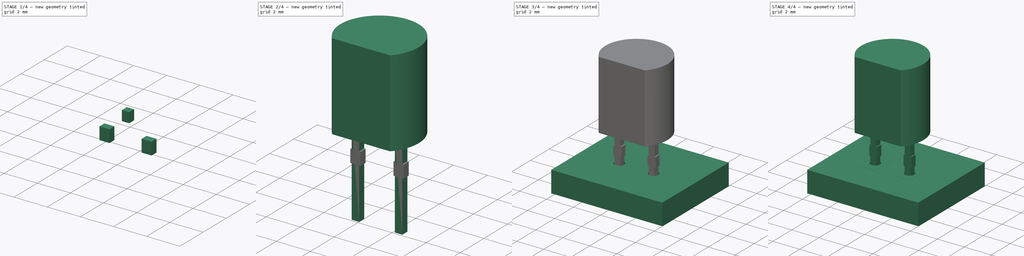
[diagram: build sequence overview — one tinted view per stage of 4, left to right]
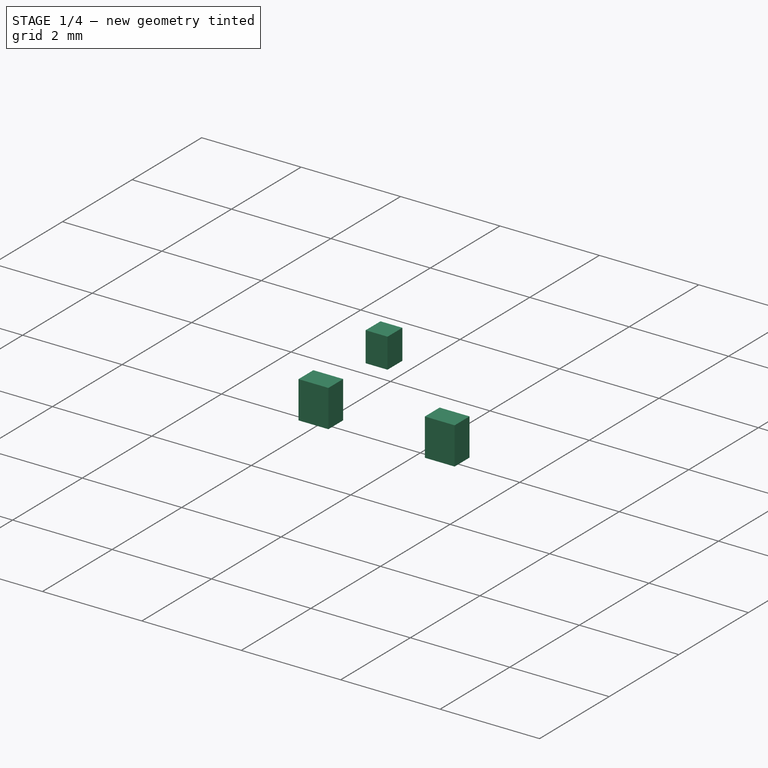
[diagram: stage 1 of 4 — iso view after this stage's code; geometry added in this stage tinted green]
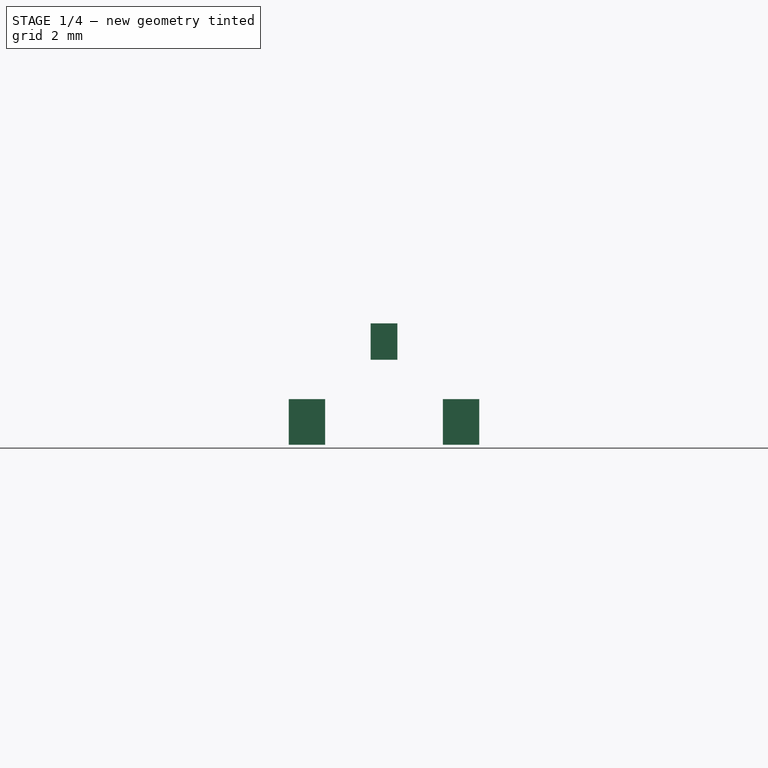
[diagram: stage 1 of 4 — front view after this stage's code; geometry added in this stage tinted green]
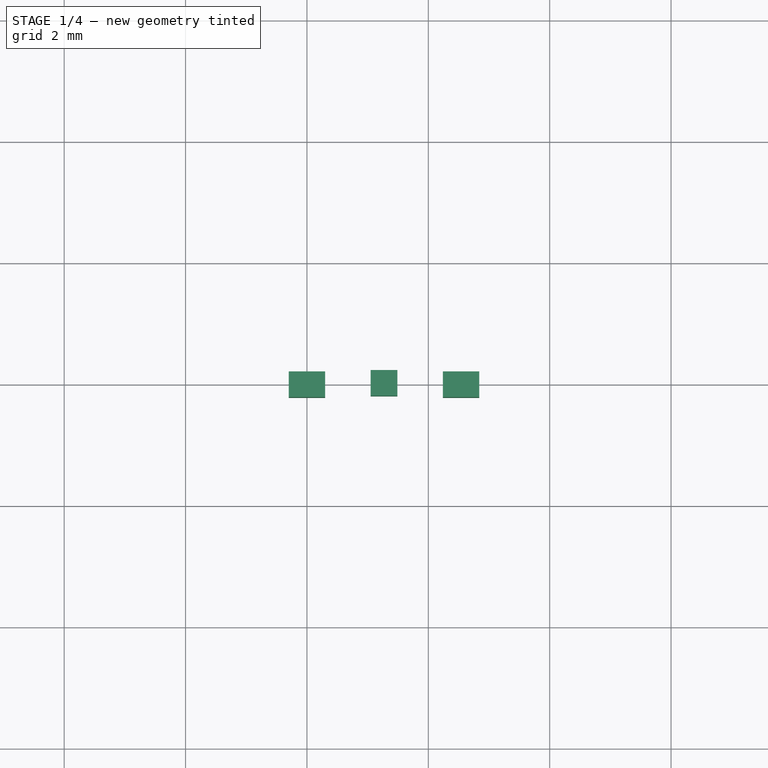
[diagram: stage 1 of 4 — top view after this stage's code; geometry added in this stage tinted green]
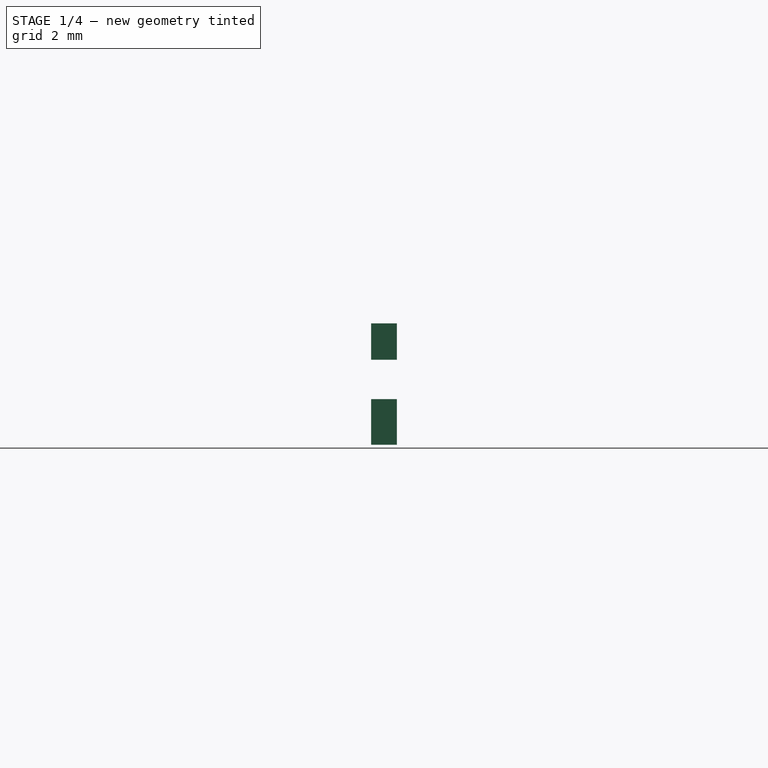
[diagram: stage 1 of 4 — right view after this stage's code; geometry added in this stage tinted green]
FCSTD DOCUMENT  (FreeCAD 0.16R6712 (Git))
Label: SOD-70_P2.54mm
License: All rights reserved
LicenseURL: http://en.wikipedia.org/wiki/All_rights_reserved
objects: Part::FeaturePython×7, Sketcher::SketchObject×4, PartDesign::Pad×4, App::DocumentObjectGroup×1, Part::MultiFuse×1
note: 20 computed .brp shape members not serialized (recipe doc carries the construction recipe); baked Part::Feature solids carry a one-line shape summary decoded from their .brp

FEATURE [App::DocumentObjectGroup] SOD_70_P2_54mm_fp
  Group = -> [FCrtYd_lines,FFab_lines,Filk_lines,TopPads,BotPads,THPs,newPCB]
FEATURE [Sketcher::SketchObject] Sketch002
  Placement = pos=(0,0,2.5) rot=(0,0,1;0rad)
  sketch-geometry (7):
    g0: LineSegment StartX=1.05 StartY=0.2125 StartZ=0 EndX=1.49 EndY=0.2125 EndZ=0
    g1: LineSegment StartX=1.49 StartY=0.2125 StartZ=0 EndX=1.49 EndY=-0.2125 EndZ=0
    g2: LineSegment StartX=1.49 StartY=-0.2125 StartZ=0 EndX=1.05 EndY=-0.2125 EndZ=0
    g3: LineSegment StartX=1.05 StartY=-0.2125 StartZ=0 EndX=1.05 EndY=0.2125 EndZ=0
    g4: GeomPoint [constr] X=1.49 Y=0 Z=0
    g5: LineSegment [constr] StartX=1.05 StartY=0 StartZ=0 EndX=1.49 EndY=0 EndZ=0
    g6: GeomPoint [constr] X=1.27 Y=0 Z=0
  constraints (18):
    c: Coincident(g0,g1)
    c: Coincident(g1,g2)
    c: Coincident(g2,g3)
    c: Coincident(g3,g0)
    c: Horizontal(g0)
    c: Horizontal(g2)
    c: Vertical(g1)
    c: Vertical(g3)
    c: PointOnObject(g4,g-1)
    c: Symmetric(g1,g1,g4)
    c: DistanceX(g0,g0) = 0.44
    c: DistanceY(g1,g1) = 0.425
    c: PointOnObject(g5,g3)
    c: Coincident(g5,g4)
    c: Horizontal(g5)
    c: PointOnObject(g6,g5)
    c: Symmetric(g5,g5,g6)
    c: DistanceX(g-1,g6) = 1.27
FEATURE [PartDesign::Pad] Pad002
  Length = 0.6
  Length2 = 100
  Placement = pos=(0,0,2.5) rot=(0,0,1;0rad)
  Reversed = true
  Sketch = -> Sketch002
  Type = 0
FEATURE [Sketcher::SketchObject] Sketch003
  Placement = pos=(0,-0.2125,2.5) rot=(1,0,0;1.5708rad)
  expr: Constraints[25] = 2.5 - 0.75 - 0.5
  sketch-geometry (9):
    g0: LineSegment StartX=-0.3 StartY=-1.25 StartZ=0 EndX=0.3 EndY=-1.25 EndZ=0
    g1: LineSegment StartX=0.3 StartY=-1.25 StartZ=0 EndX=0.3 EndY=-2 EndZ=0
    g2: LineSegment StartX=0.3 StartY=-2 StartZ=0 EndX=-0.3 EndY=-2 EndZ=0
    g3: LineSegment StartX=-0.3 StartY=-2 StartZ=0 EndX=-0.3 EndY=-1.25 EndZ=0
    g4: LineSegment StartX=2.24 StartY=-1.25 StartZ=0 EndX=2.84 EndY=-1.25 EndZ=0
    g5: LineSegment StartX=2.84 StartY=-1.25 StartZ=0 EndX=2.84 EndY=-2 EndZ=0
    g6: LineSegment StartX=2.84 StartY=-2 StartZ=0 EndX=2.24 EndY=-2 EndZ=0
    g7: LineSegment StartX=2.24 StartY=-2 StartZ=0 EndX=2.24 EndY=-1.25 EndZ=0
    g8: LineSegment [constr] StartX=0 StartY=-1.25 StartZ=0 EndX=2.54 EndY=-1.25 EndZ=0
  constraints (26):
    c: Coincident(g0,g1)
    c: Coincident(g1,g2)
    c: Coincident(g2,g3)
    c: Coincident(g3,g0)
    c: Horizontal(g0)
    c: Horizontal(g2)
    c: Vertical(g1)
    c: Vertical(g3)
    c: Coincident(g4,g5)
    c: Coincident(g5,g6)
    c: Coincident(g6,g7)
    c: Coincident(g7,g4)
    c: Horizontal(g4)
    c: Horizontal(g6)
    c: Vertical(g5)
    c: Vertical(g7)
    c: PointOnObject(g8,g-2)
    c: Horizontal(g8)
    c: Symmetric(g4,g4,g8)
    c: Symmetric(g0,g0,g8)
    c: Equal(g2,g6)
    c: Equal(g5,g1)
    c: DistanceX(g8,g8) = 2.54
    c: DistanceY(g3,g3) = 0.75
    c: DistanceX(g2,g2) = 0.6
    c: DistanceY(g0,g-1) = 1.25
FEATURE [PartDesign::Pad] Pad003
  Length = 0.425
  Length2 = 100
  Placement = pos=(0,-0.2125,2.5) rot=(1,0,0;1.5708rad)
  Reversed = true
  Sketch = -> Sketch003
  Type = 0
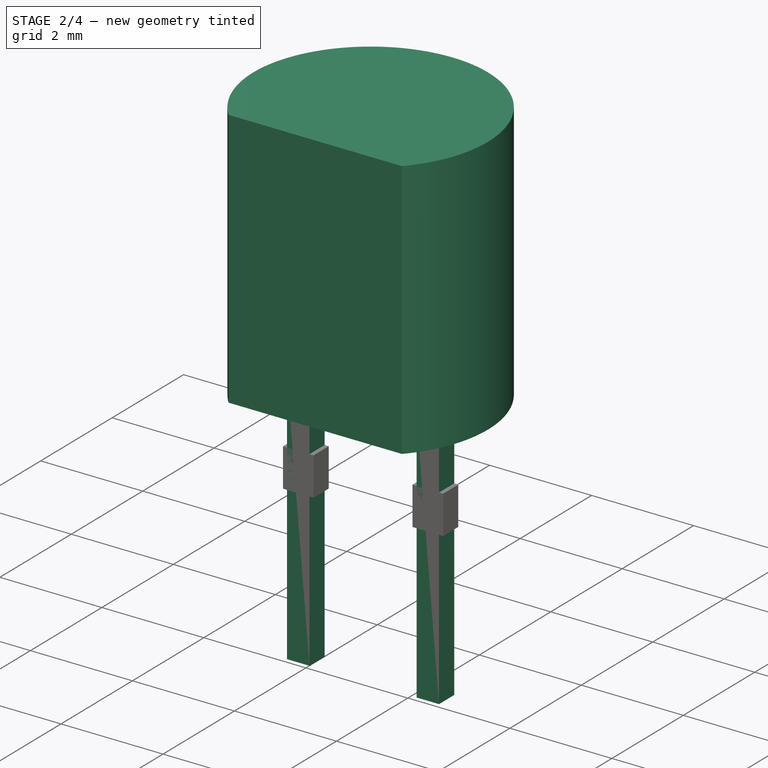
[diagram: stage 2 of 4 — iso view after this stage's code; geometry added in this stage tinted green]
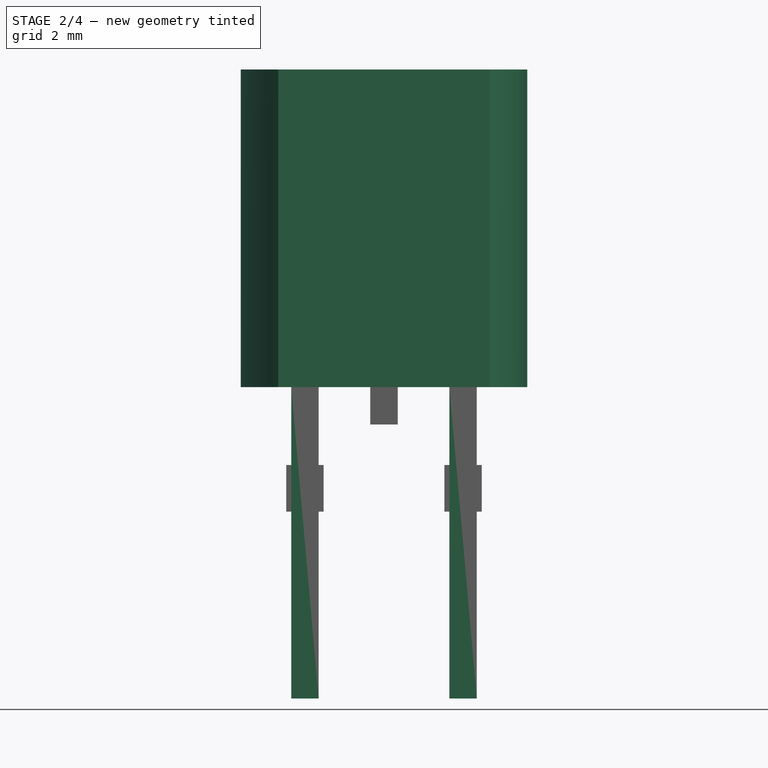
[diagram: stage 2 of 4 — front view after this stage's code; geometry added in this stage tinted green]
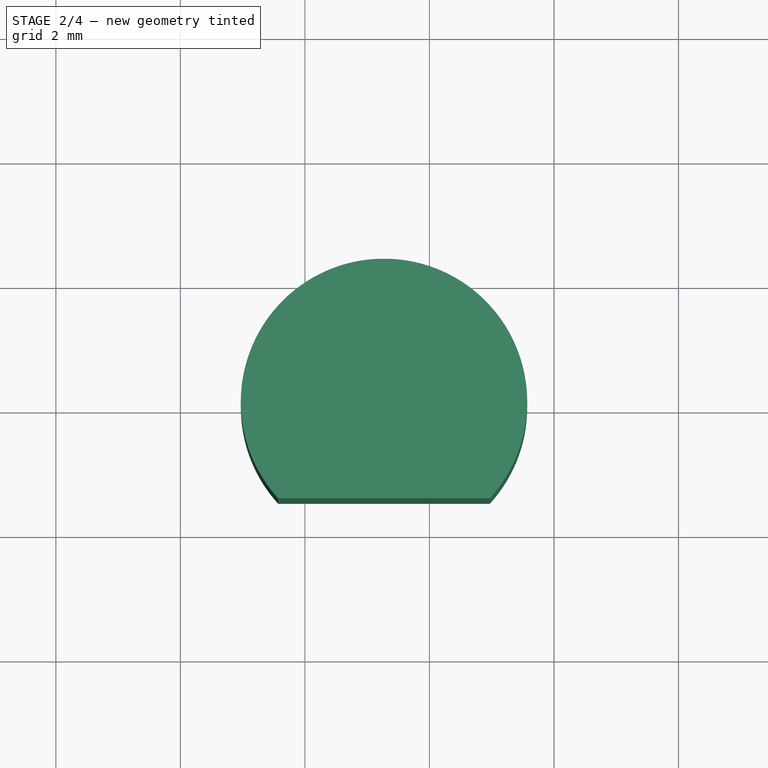
[diagram: stage 2 of 4 — top view after this stage's code; geometry added in this stage tinted green]
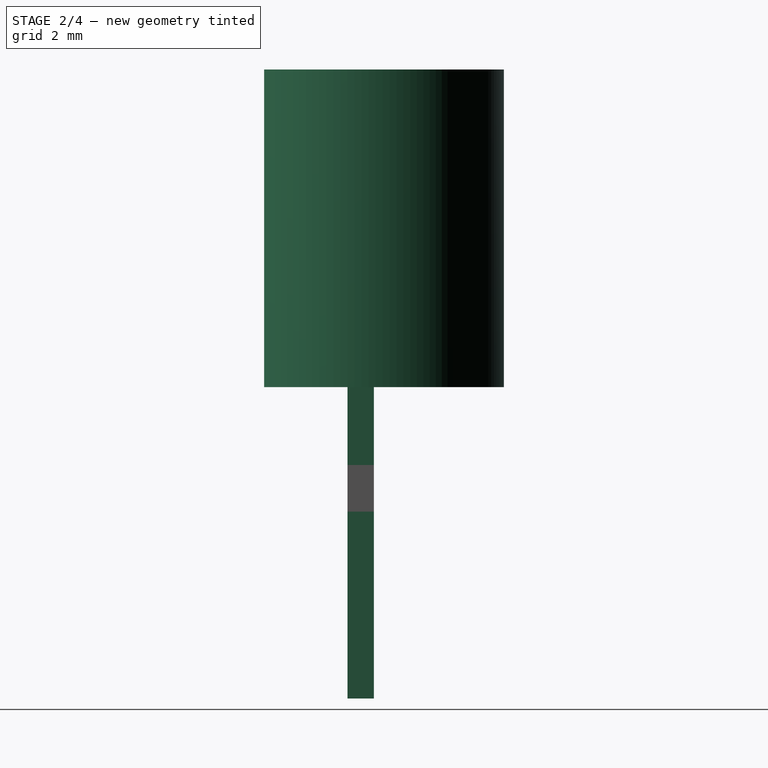
[diagram: stage 2 of 4 — right view after this stage's code; geometry added in this stage tinted green]
FEATURE [Sketcher::SketchObject] Sketch
  Placement = pos=(0,0,2.5) rot=(0,0,1;0rad)
  expr: Constraints[7] = 4.6 / 2
  sketch-geometry (4):
    g0: LineSegment [constr] StartX=0 StartY=0 StartZ=0 EndX=1.27 EndY=0 EndZ=0
    g1: LineSegment StartX=-0.429265 StartY=-1.55 StartZ=0 EndX=2.96926 EndY=-1.55 EndZ=0
    g2: ArcOfCircle CenterX=1.27 CenterY=0 CenterZ=0 NormalX=0 NormalY=0 NormalZ=1 Radius=2.3 StartAngle=5.54369 EndAngle=10.1643
    g3: LineSegment [constr] StartX=1.27 StartY=0 StartZ=0 EndX=1.27 EndY=2.3 EndZ=0
  constraints (12):
    c: Coincident(g0,g-1)
    c: Horizontal(g0)
    c: DistanceX(g0,g0) = 1.27
    c: Horizontal(g1)
    c: Coincident(g2,g0)
    c: Coincident(g2,g1)
    c: Coincident(g2,g1)
    c: Radius(g2) = 2.3
    c: Coincident(g3,g0)
    c: PointOnObject(g3,g2)
    c: Vertical(g3)
    c: DistanceY(g1,g3) = 3.85
FEATURE [PartDesign::Pad] Pad
  Length = 5.1
  Length2 = 100
  Placement = pos=(0,0,2.5) rot=(0,0,1;0rad)
  Sketch = -> Sketch
  Type = 0
FEATURE [Sketcher::SketchObject] Sketch001
  Placement = pos=(0,0,2.5) rot=(0,0,1;0rad)
  sketch-geometry (9):
    g0: LineSegment StartX=-0.22 StartY=0.2125 StartZ=0 EndX=0.22 EndY=0.2125 EndZ=0
    g1: LineSegment StartX=0.22 StartY=0.2125 StartZ=0 EndX=0.22 EndY=-0.2125 EndZ=0
    g2: LineSegment StartX=0.22 StartY=-0.2125 StartZ=0 EndX=-0.22 EndY=-0.2125 EndZ=0
    g3: LineSegment StartX=-0.22 StartY=-0.2125 StartZ=0 EndX=-0.22 EndY=0.2125 EndZ=0
    g4: LineSegment [constr] StartX=-0.22 StartY=0 StartZ=0 EndX=0.22 EndY=0 EndZ=0
    g5: LineSegment StartX=2.32 StartY=0.2125 StartZ=0 EndX=2.76 EndY=0.2125 EndZ=0
    g6: LineSegment StartX=2.76 StartY=0.2125 StartZ=0 EndX=2.76 EndY=-0.2125 EndZ=0
    g7: LineSegment StartX=2.76 StartY=-0.2125 StartZ=0 EndX=2.32 EndY=-0.2125 EndZ=0
    g8: LineSegment StartX=2.32 StartY=-0.2125 StartZ=0 EndX=2.32 EndY=0.2125 EndZ=0
  constraints (28):
    c: Coincident(g0,g1)
    c: Coincident(g1,g2)
    c: Coincident(g2,g3)
    c: Coincident(g3,g0)
    c: Horizontal(g0)
    c: Horizontal(g2)
    c: Vertical(g1)
    c: Vertical(g3)
    c: DistanceX(g0,g0) = 0.44
    c: DistanceY(g1,g1) = 0.425
    c: PointOnObject(g4,g3)
    c: PointOnObject(g4,g1)
    c: Horizontal(g4)
    c: PointOnObject(g-1,g4)
    c: Symmetric(g1,g1,g4)
    c: Symmetric(g4,g4,g-1)
    c: Coincident(g5,g6)
    c: Coincident(g6,g7)
    c: Coincident(g7,g8)
    c: Coincident(g8,g5)
    c: Horizontal(g5)
    c: Horizontal(g7)
    c: Vertical(g6)
    c: Vertical(g8)
    c: Equal(g5,g0)
    c: Equal(g3,g8)
    c: DistanceY(g5,g0) = 0
    c: DistanceX(g0,g5) = 2.54
FEATURE [PartDesign::Pad] Pad001
  Length = 5
  Length2 = 100
  Placement = pos=(0,0,2.5) rot=(0,0,1;0rad)
  Reversed = true
  Sketch = -> Sketch001
  Type = 0
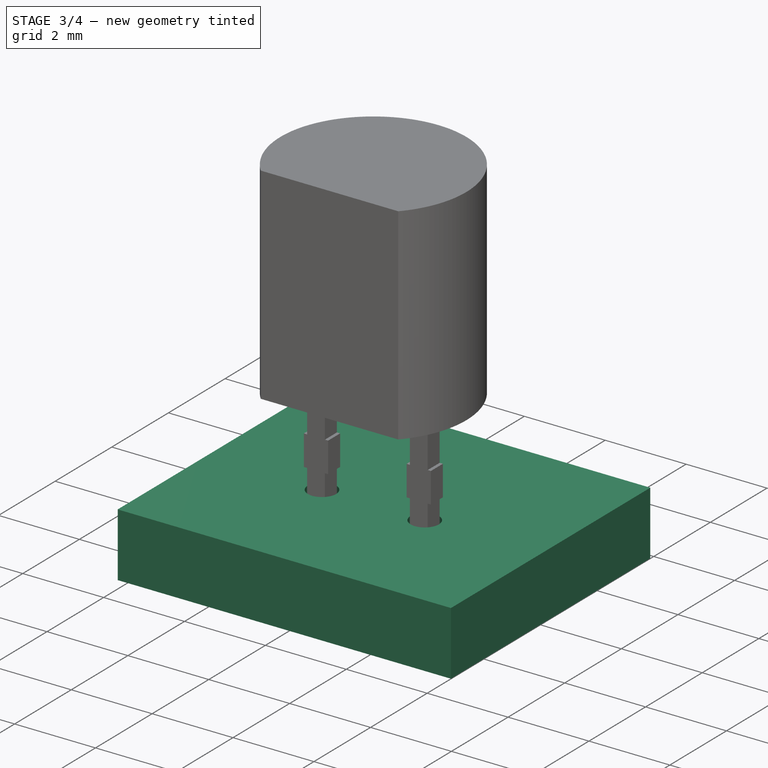
[diagram: stage 3 of 4 — iso view after this stage's code; geometry added in this stage tinted green]
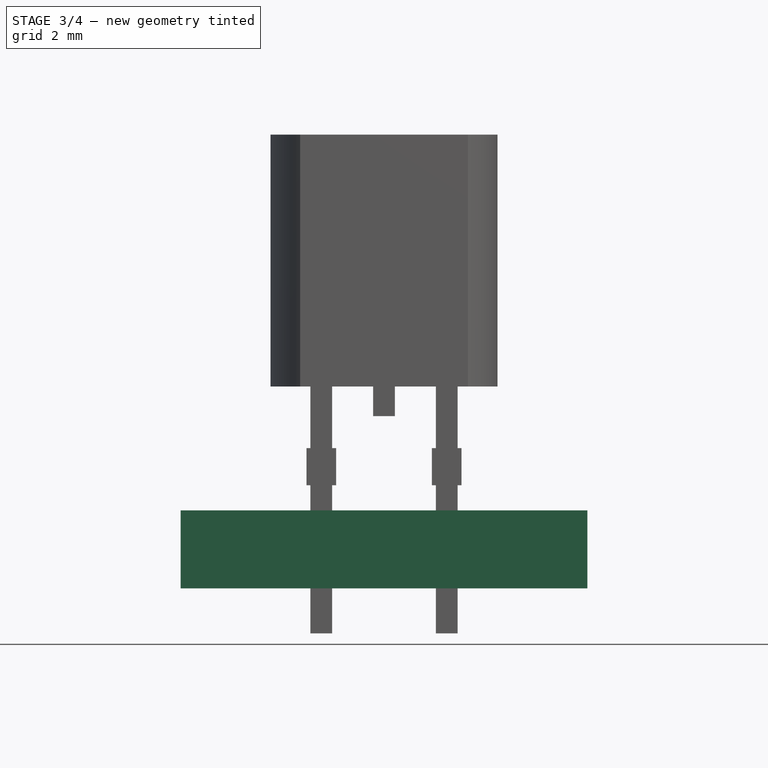
[diagram: stage 3 of 4 — front view after this stage's code; geometry added in this stage tinted green]
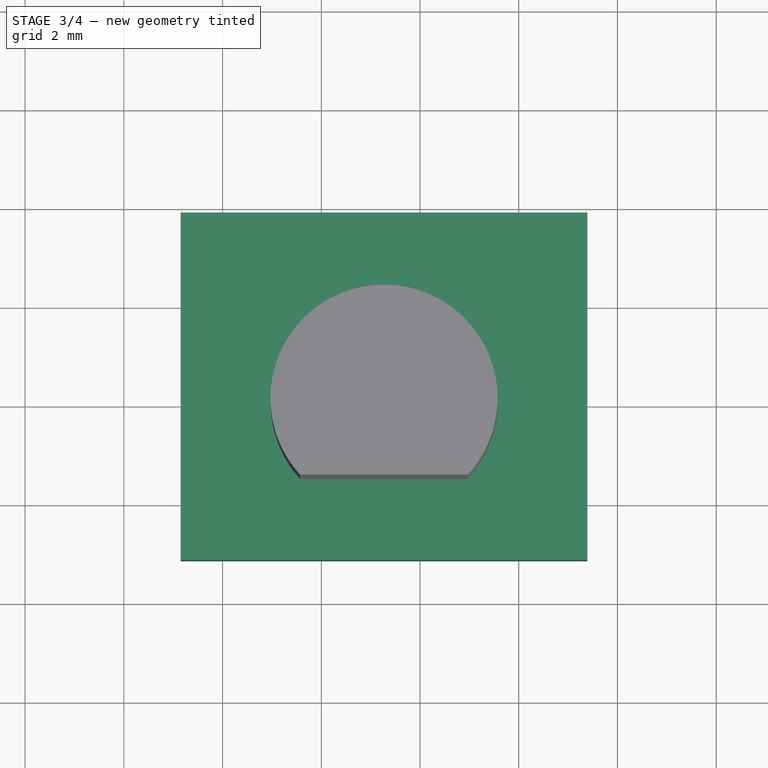
[diagram: stage 3 of 4 — top view after this stage's code; geometry added in this stage tinted green]
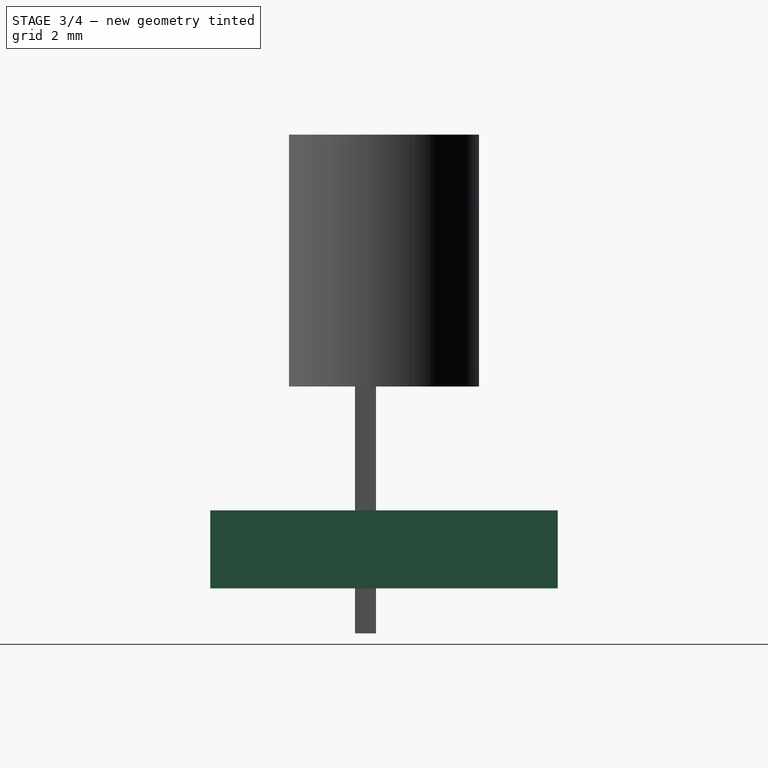
[diagram: stage 3 of 4 — right view after this stage's code; geometry added in this stage tinted green]
FEATURE [Part::FeaturePython] THPs  label="PTHs"  # a2plus imported part (geometry in sourceFile) (typed FeaturePython)
  fixedPosition = true
FEATURE [Part::FeaturePython] newPCB  label="Pcb"  # a2plus imported part (geometry in sourceFile) (typed FeaturePython)
  fixedPosition = true
FEATURE [Part::MultiFuse] Pad001_mp_cp  label="SOD-70_P2.54mm"
  Shapes = -> [Pad001,Pad,Pad002,Pad003]
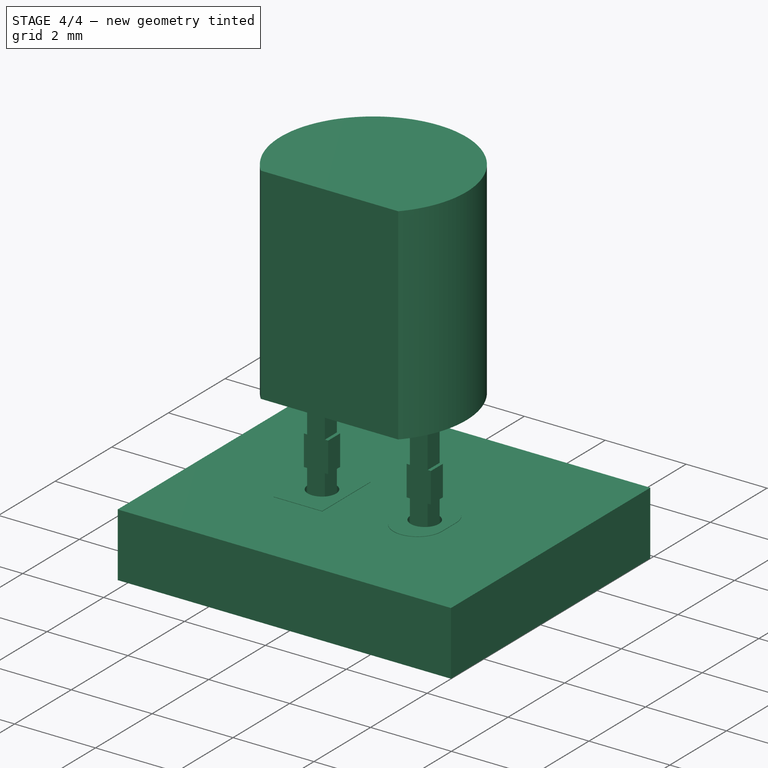
[diagram: stage 4 of 4 — iso view after this stage's code; geometry added in this stage tinted green]
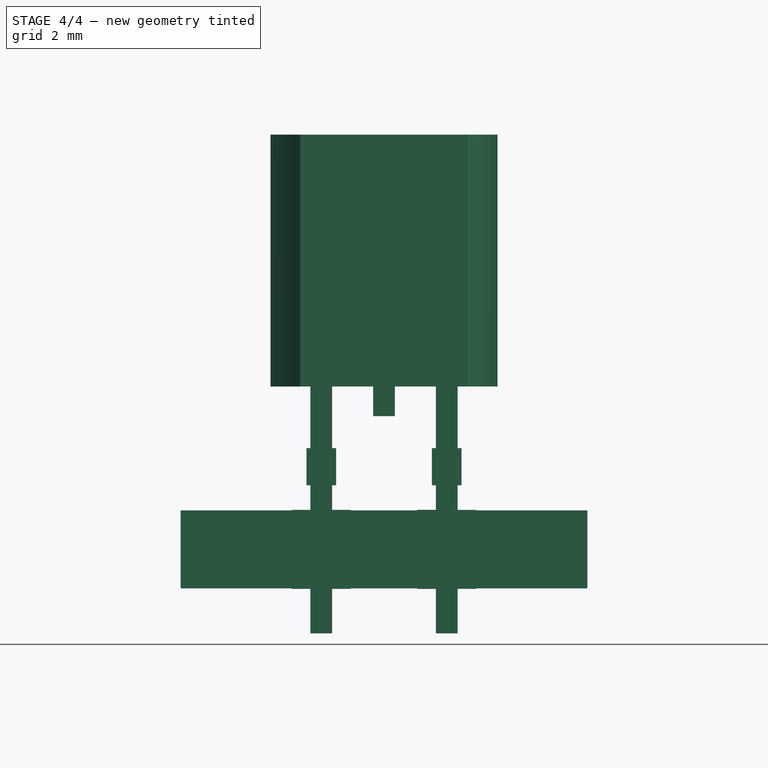
[diagram: stage 4 of 4 — front view after this stage's code; geometry added in this stage tinted green]
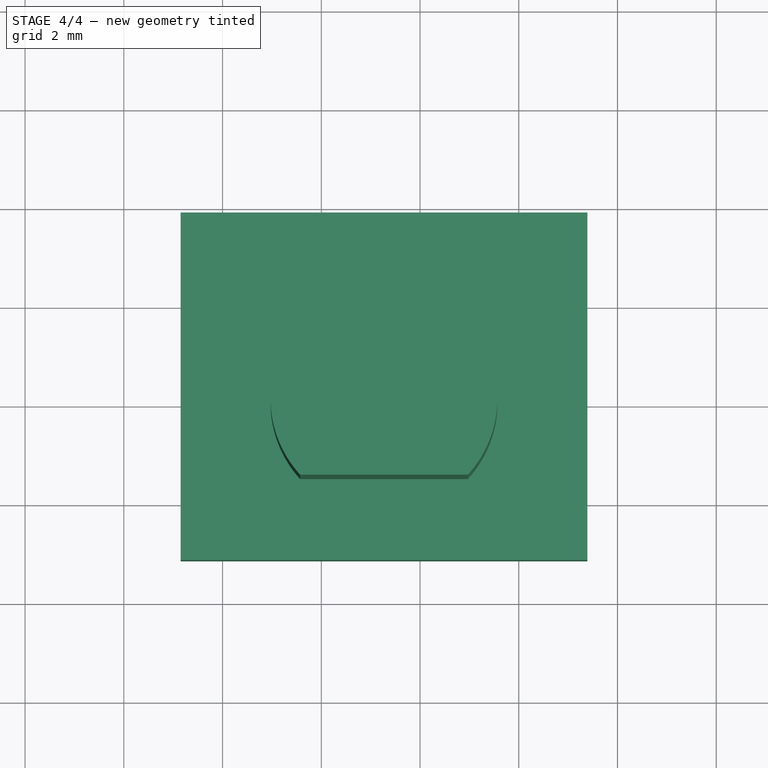
[diagram: stage 4 of 4 — top view after this stage's code; geometry added in this stage tinted green]
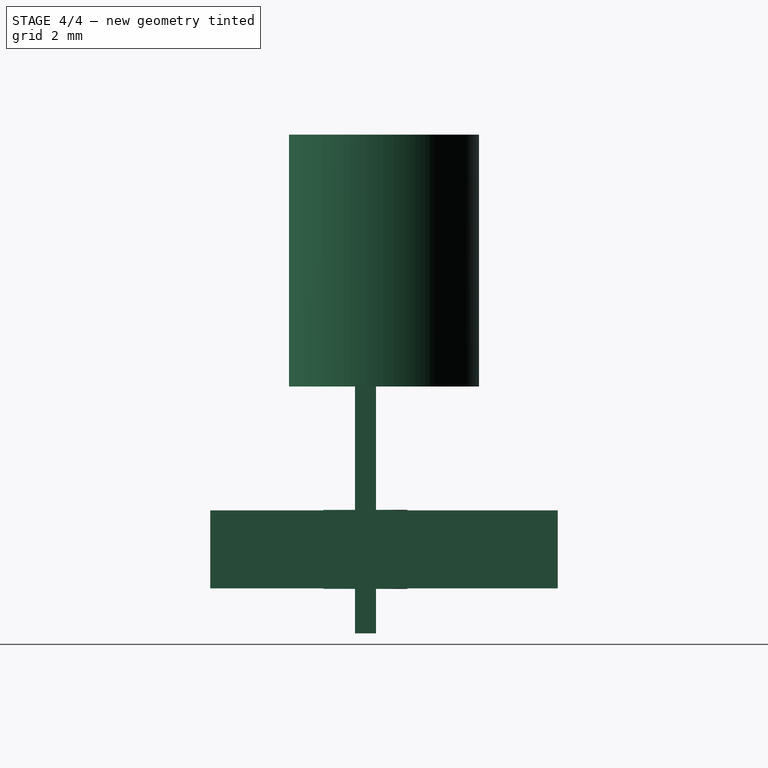
[diagram: stage 4 of 4 — right view after this stage's code; geometry added in this stage tinted green]
FEATURE [Part::FeaturePython] FCrtYd_lines  label="FCrtYd"  # a2plus imported part (geometry in sourceFile) (typed FeaturePython)
  fixedPosition = true
FEATURE [Part::FeaturePython] FFab_lines  label="FFab"  # a2plus imported part (geometry in sourceFile) (typed FeaturePython)
  fixedPosition = true
FEATURE [Part::FeaturePython] Filk_lines  label="FrontSilk"  # a2plus imported part (geometry in sourceFile) (typed FeaturePython)
  fixedPosition = true
FEATURE [Part::FeaturePython] TopPads  # a2plus imported part (geometry in sourceFile) (typed FeaturePython)
  fixedPosition = true
FEATURE [Part::FeaturePython] BotPads  # a2plus imported part (geometry in sourceFile) (typed FeaturePython)
  fixedPosition = true
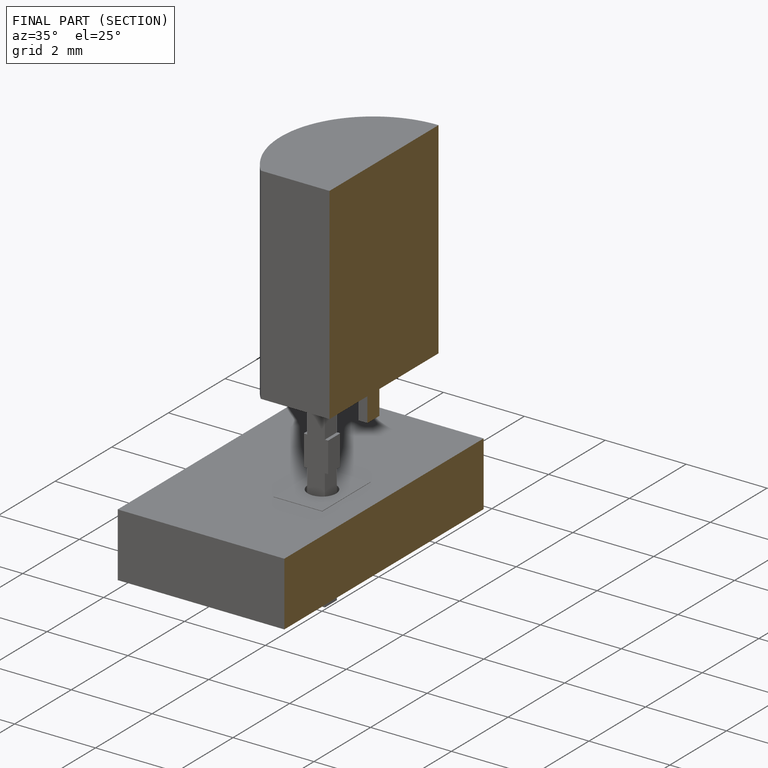
[diagram: finished part — half-section view (interior)]
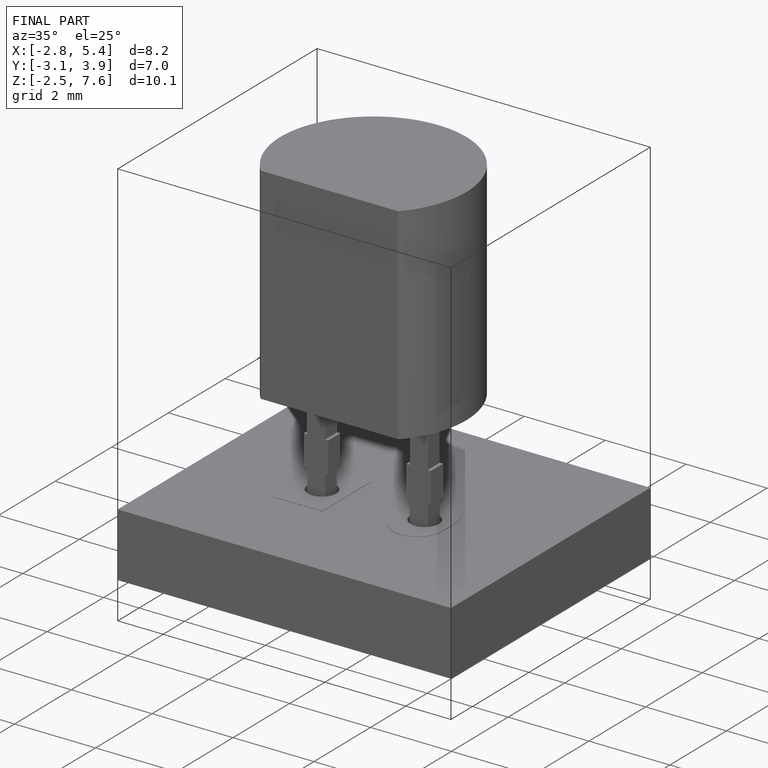
[diagram: finished part — iso view with bounding-box wireframe]
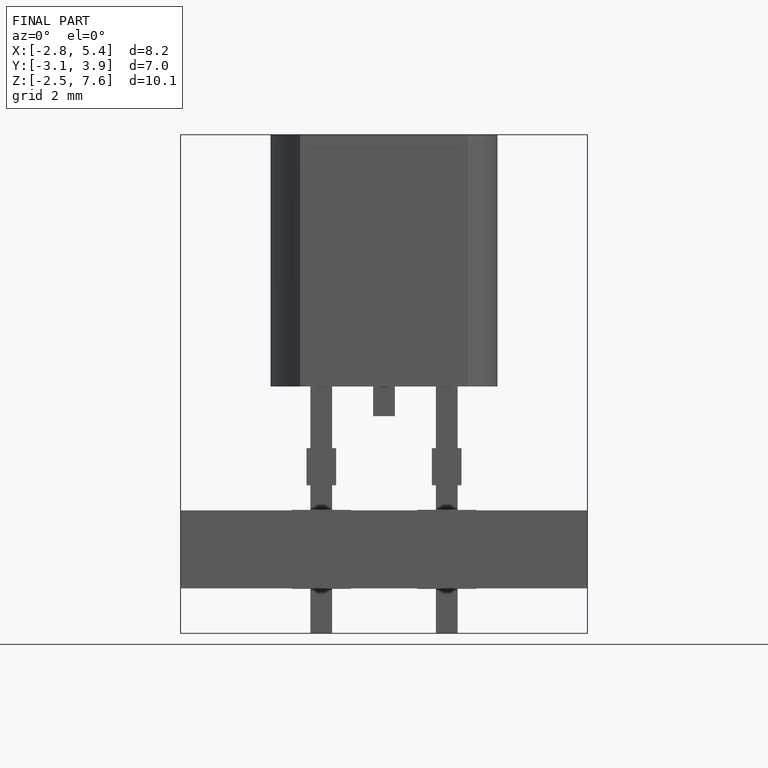
[diagram: finished part — front view with bounding-box wireframe]
